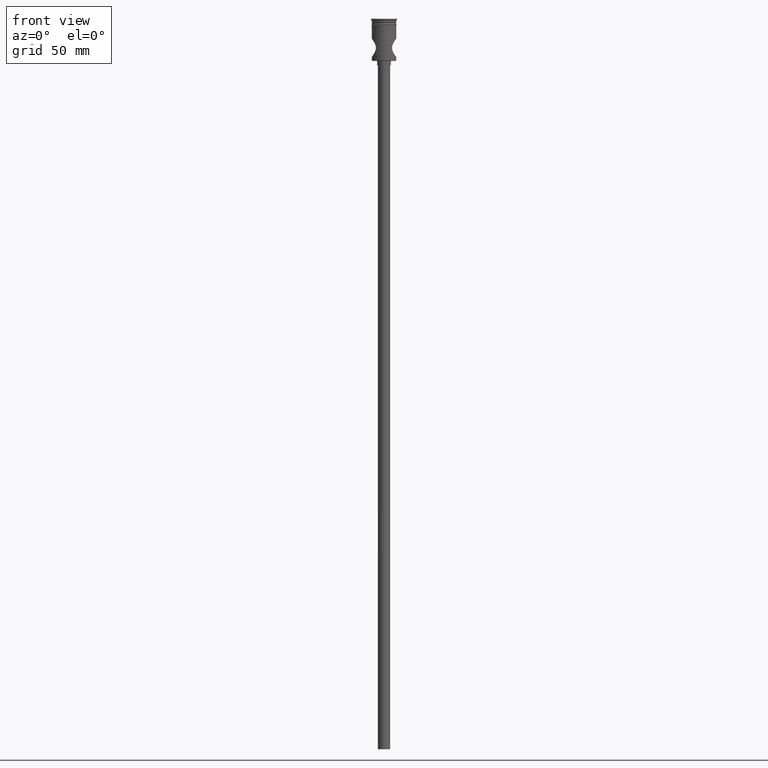
[diagram: clean part render]
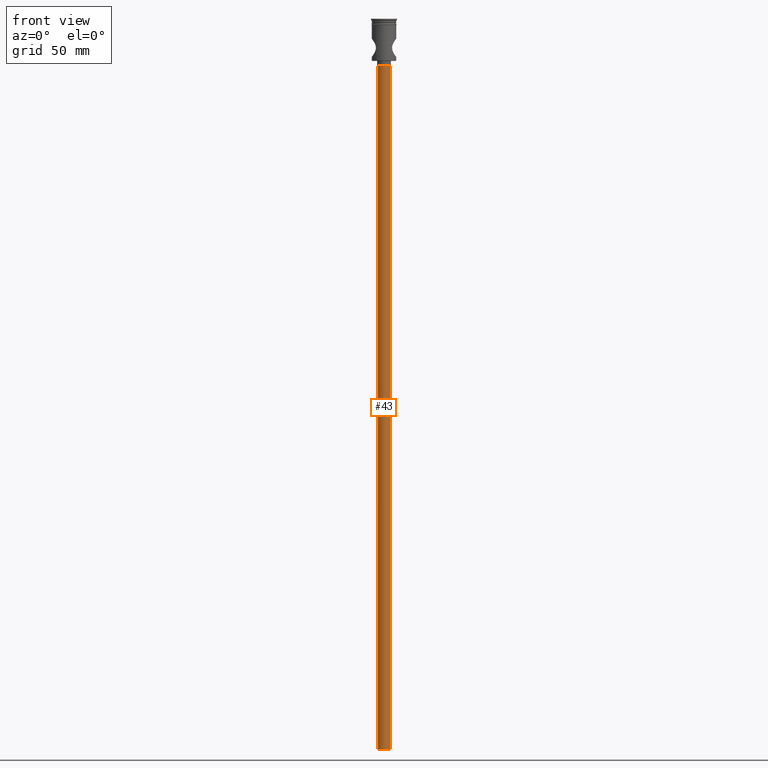
[diagram: same view with one face highlighted and labeled with its STEP entity id]
A machine part, front view. The second image highlights one B-rep face of the part: STEP entity #43.
In plain terms, the highlighted cylindrical surface (edge-blend (fillet) strip) has radius 4 mm, axis along (-0, -0, 1).
Its self-contained STEP definition (entity closure, byte-faithful):
#43 = ADVANCED_FACE ( 'NONE', ( #1517 ), #934, .T. ) ;
#91 = CARTESIAN_POINT ( 'NONE',  ( 0.000000000000000000, 0.000000000000000000, -477.5000000000000568 ) ) ;
#101 = DIRECTION ( 'NONE',  ( -1.000000000000000000, 0.000000000000000000, 0.000000000000000000 ) ) ;
#169 = VECTOR ( 'NONE', #905, 1000.000000000000000 ) ;
#215 = CIRCLE ( 'NONE', #389, 4.000000000000000000 ) ;
#255 = EDGE_CURVE ( 'NONE', #269, #1123, #547, .T. ) ;
#269 = VERTEX_POINT ( 'NONE', #693 ) ;
#276 = VERTEX_POINT ( 'NONE', #1036 ) ;
#389 = AXIS2_PLACEMENT_3D ( 'NONE', #1309, #676, #101 ) ;
#462 = CIRCLE ( 'NONE', #815, 4.000000000000000000 ) ;
#475 = LINE ( 'NONE', #593, #658 ) ;
#483 = AXIS2_PLACEMENT_3D ( 'NONE', #1252, #543, #1021 ) ;
#491 = ORIENTED_EDGE ( 'NONE', *, *, #1183, .F. ) ;
#543 = DIRECTION ( 'NONE',  ( -0.000000000000000000, -0.000000000000000000, 1.000000000000000000 ) ) ;
#547 = LINE ( 'NONE', #1460, #169 ) ;
#593 = CARTESIAN_POINT ( 'NONE',  ( -4.000000000000000000, 4.898587196589412829E-16, -477.5000000000000568 ) ) ;
#658 = VECTOR ( 'NONE', #1078, 1000.000000000000000 ) ;
#676 = DIRECTION ( 'NONE',  ( 0.000000000000000000, 0.000000000000000000, -1.000000000000000000 ) ) ;
#693 = CARTESIAN_POINT ( 'NONE',  ( 4.000000000000000000, 0.000000000000000000, -477.5000000000000568 ) ) ;
#806 = EDGE_LOOP ( 'NONE', ( #1402, #491, #1367, #1348 ) ) ;
#815 = AXIS2_PLACEMENT_3D ( 'NONE', #91, #1033, #1496 ) ;
#905 = DIRECTION ( 'NONE',  ( -0.000000000000000000, -0.000000000000000000, 1.000000000000000000 ) ) ;
#934 = CYLINDRICAL_SURFACE ( 'NONE', #483, 4.000000000000000000 ) ;
#948 = VERTEX_POINT ( 'NONE', #1223 ) ;
#1021 = DIRECTION ( 'NONE',  ( 1.000000000000000000, 0.000000000000000000, 0.000000000000000000 ) ) ;
#1033 = DIRECTION ( 'NONE',  ( 0.000000000000000000, 0.000000000000000000, -1.000000000000000000 ) ) ;
#1036 = CARTESIAN_POINT ( 'NONE',  ( -4.000000000000000000, 4.898587196589412829E-16, -30.50000000000000000 ) ) ;
#1078 = DIRECTION ( 'NONE',  ( -0.000000000000000000, -0.000000000000000000, 1.000000000000000000 ) ) ;
#1123 = VERTEX_POINT ( 'NONE', #1403 ) ;
#1130 = EDGE_CURVE ( 'NONE', #948, #276, #475, .T. ) ;
#1183 = EDGE_CURVE ( 'NONE', #269, #948, #462, .T. ) ;
#1223 = CARTESIAN_POINT ( 'NONE',  ( -4.000000000000000000, 4.898587196589412829E-16, -477.5000000000000568 ) ) ;
#1252 = CARTESIAN_POINT ( 'NONE',  ( 0.000000000000000000, 0.000000000000000000, -477.5000000000000568 ) ) ;
#1284 = EDGE_CURVE ( 'NONE', #1123, #276, #215, .T. ) ;
#1309 = CARTESIAN_POINT ( 'NONE',  ( 0.000000000000000000, 0.000000000000000000, -30.50000000000000000 ) ) ;
#1348 = ORIENTED_EDGE ( 'NONE', *, *, #1284, .T. ) ;
#1367 = ORIENTED_EDGE ( 'NONE', *, *, #255, .T. ) ;
#1402 = ORIENTED_EDGE ( 'NONE', *, *, #1130, .F. ) ;
#1403 = CARTESIAN_POINT ( 'NONE',  ( 4.000000000000000000, 0.000000000000000000, -30.50000000000000000 ) ) ;
#1460 = CARTESIAN_POINT ( 'NONE',  ( 4.000000000000000000, 0.000000000000000000, -477.5000000000000568 ) ) ;
#1496 = DIRECTION ( 'NONE',  ( -1.000000000000000000, 0.000000000000000000, 0.000000000000000000 ) ) ;
#1517 = FACE_OUTER_BOUND ( 'NONE', #806, .T. ) ;